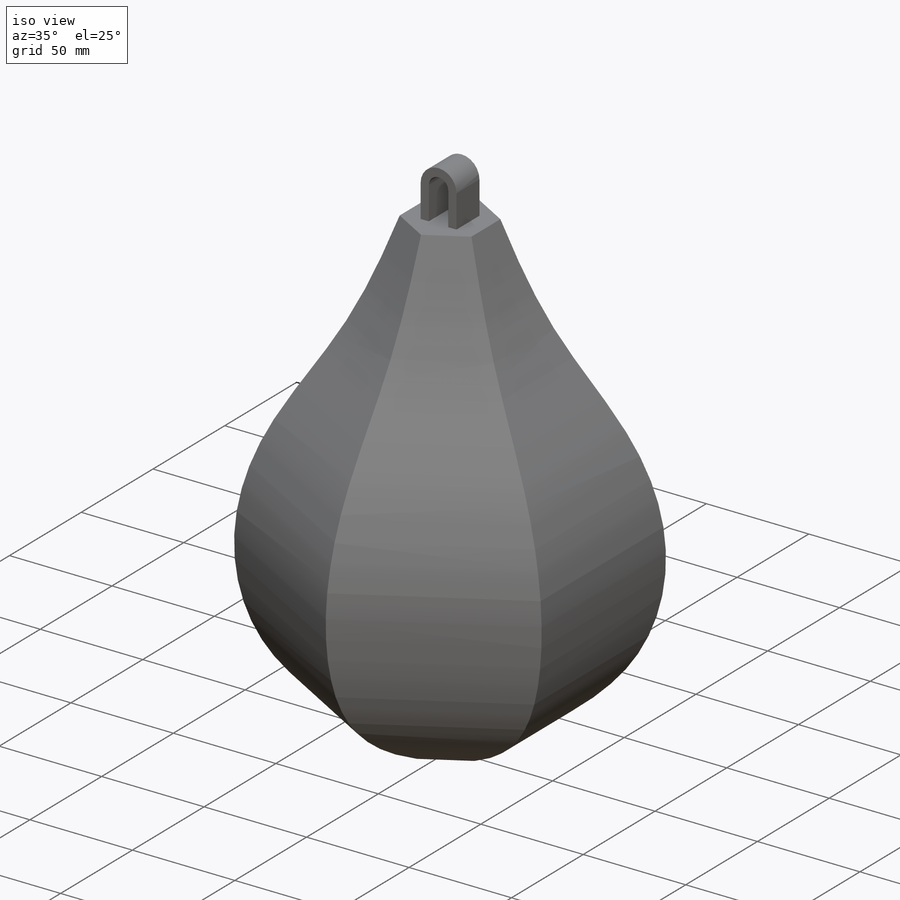
[diagram: iso view]
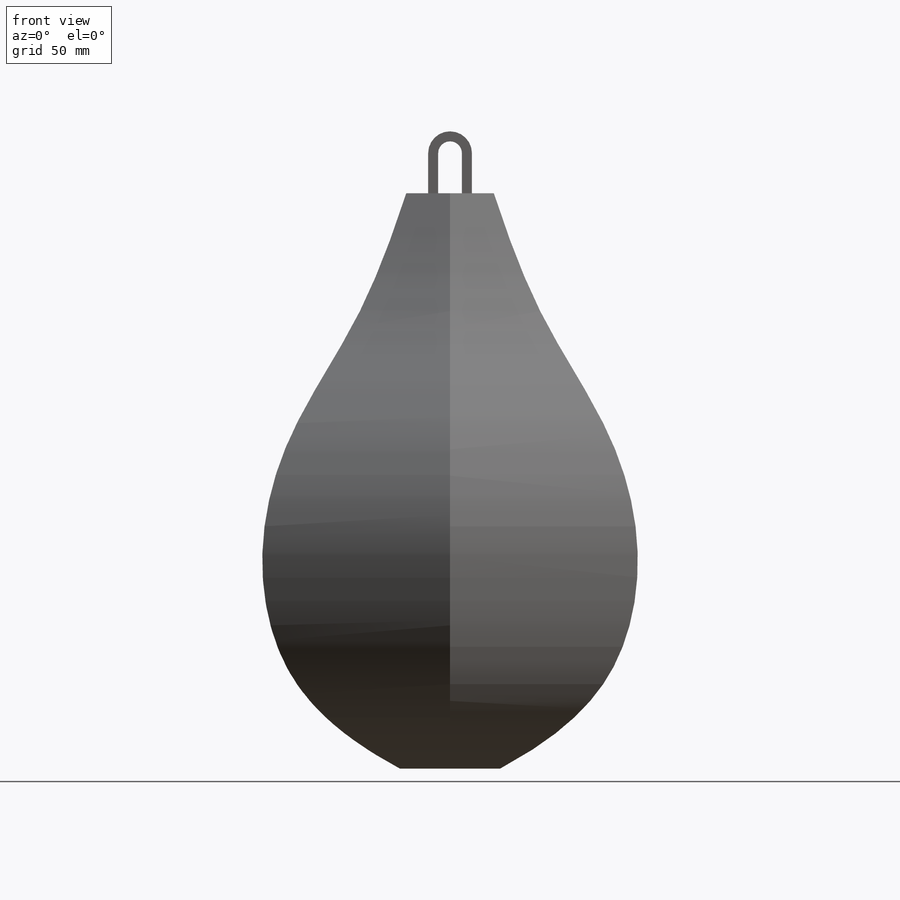
[diagram: front view]
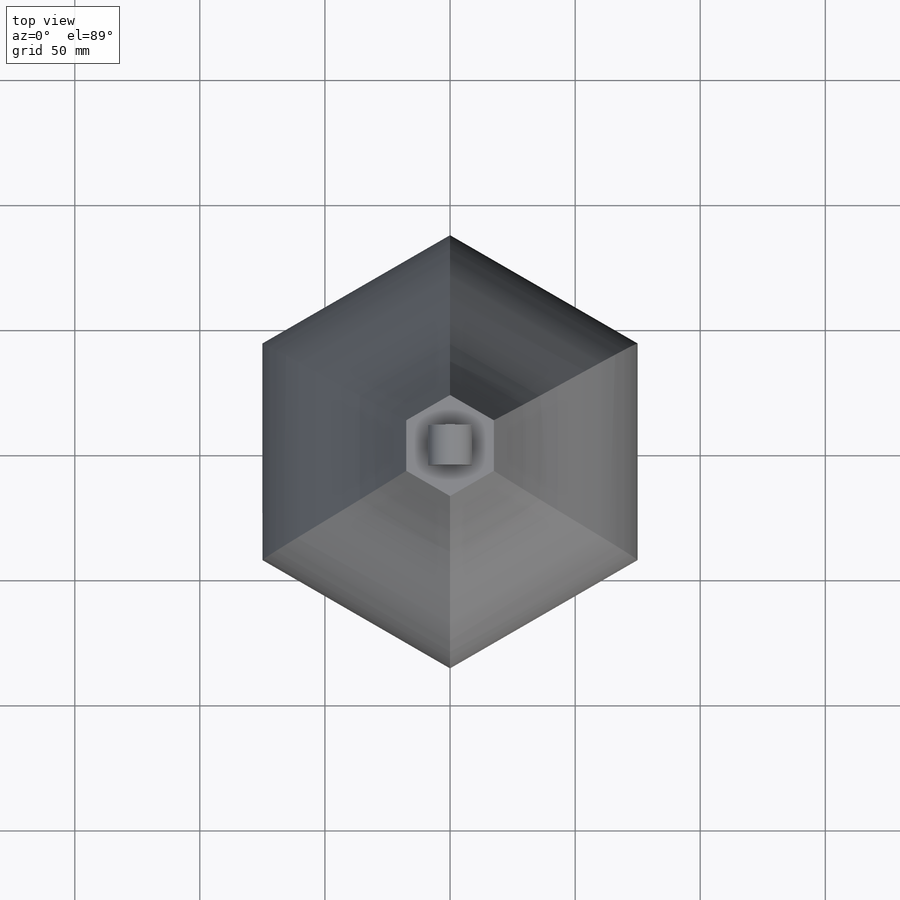
[diagram: top view]
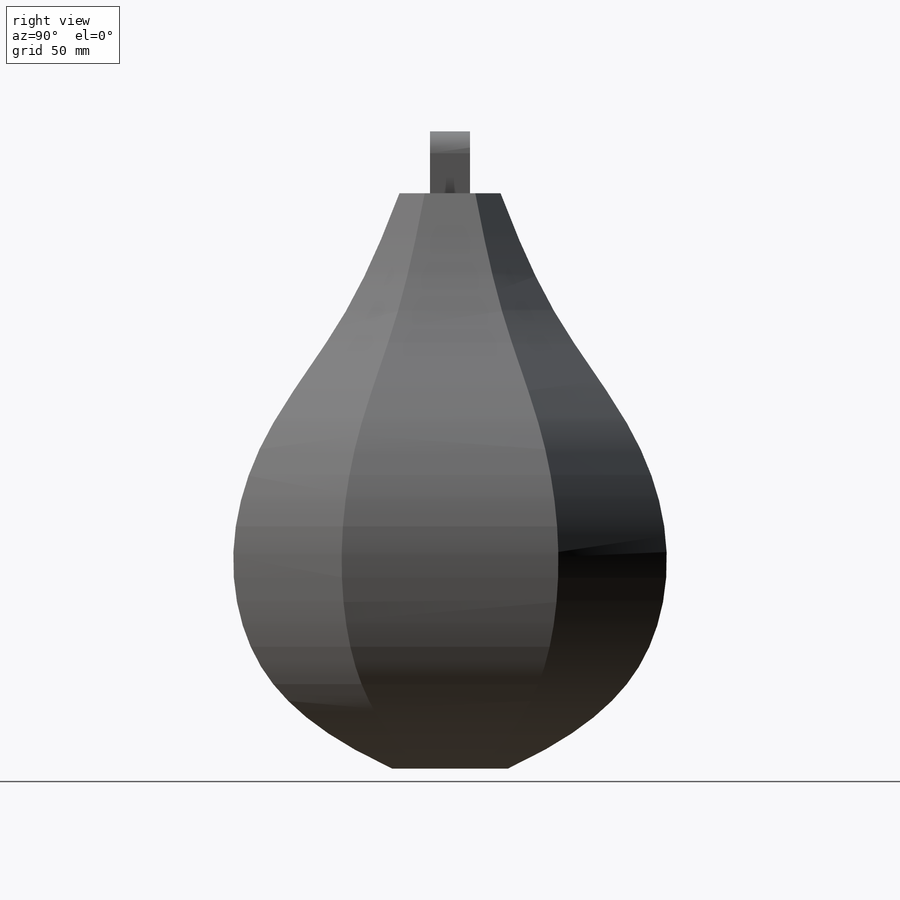
[diagram: right view]
SOLIDWORKS PART (.sldprt)
format: sldprt  version: not decoded by parser v0  size: 212,992 bytes
history: native  units: mm
features: plane x8, sketch x7, material x1, extrude x1 (+10 scaffold rows collapsed)
feature tree (27):
  scaffold x10  (default folders/planes/origin — collapsed)
  material  "Material <nicht angegeben>"
  plane  "Ebene vorne"
  plane  "Unten"
  plane  "Ebene rechts"
  plane  "Ebene1"  Offset=40mm
  plane  "Mitte"  Offset=40mm
  plane  "Ebene3"  Offset=50mm
  plane  "Ebene4"  Offset=50mm
  plane  "Ebene5"  Offset=50mm
  sketch  "Skizze1"  dims[D1=40.0mm]
  sketch  "Skizze2"  dims[D1=130.0mm]
  sketch  "Skizze3"  dims[D1=150.0mm]
  sketch  "Skizze4"  dims[D1=130.0mm]
  sketch  "Skizze5"  dims[D1=75.0mm]
  sketch  "Skizze6"  dims[D1=35.0mm]
  sketch  "Skizze10"  dims[D4=4.75mm D1=16.0mm D2=4.0mm D3=4.0mm]
  extrude  "Aufsatz-Linear austragen1"  Depth=16mm
decode coverage: 8 of 8 modeling features carry decoded parameters
note: suppression state not decoded; provenance and decode notes live in map.json
